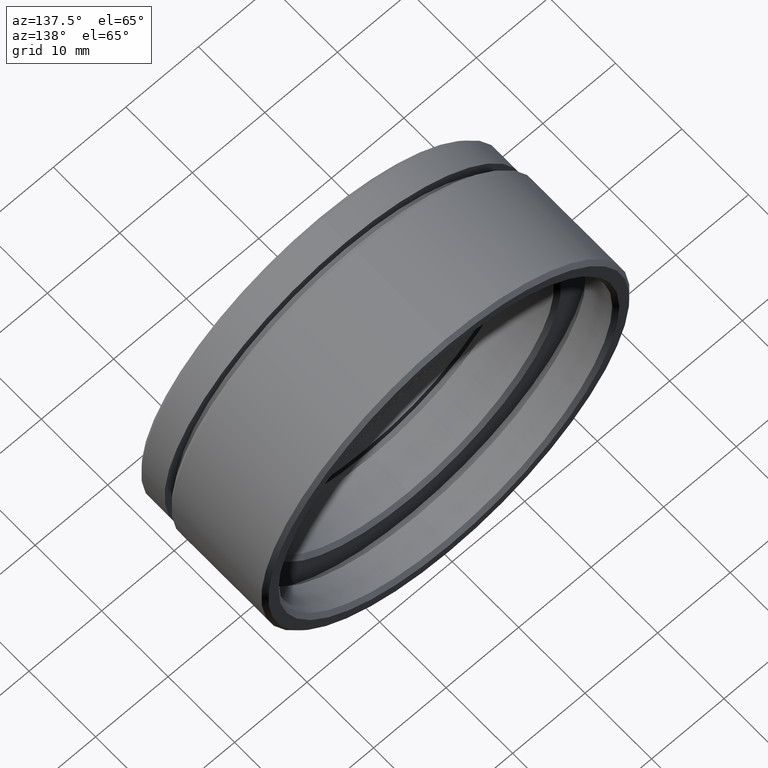
[diagram: clean part render]
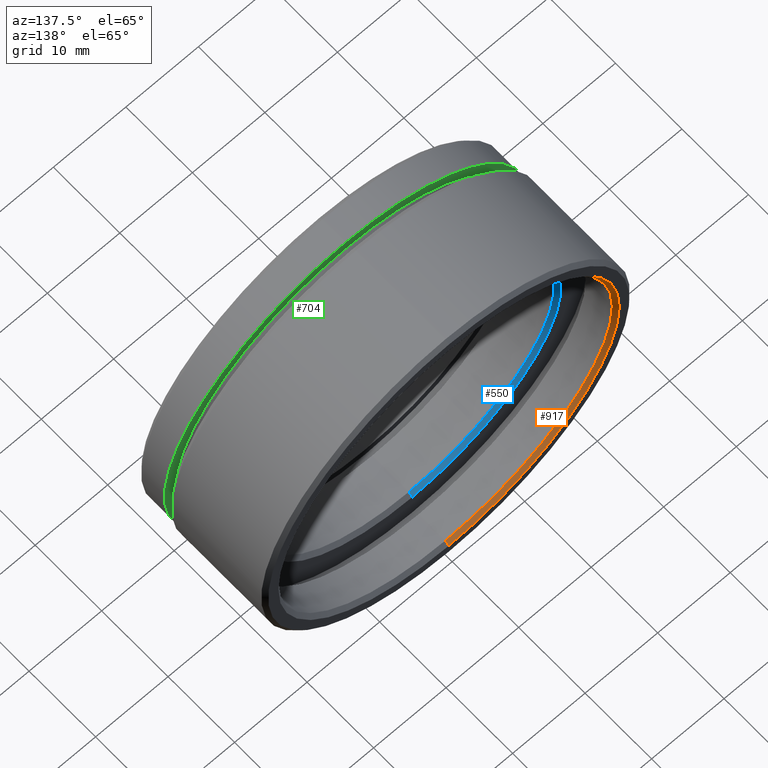
[diagram: same view with three faces highlighted in distinct colors, each labeled with its STEP entity id]
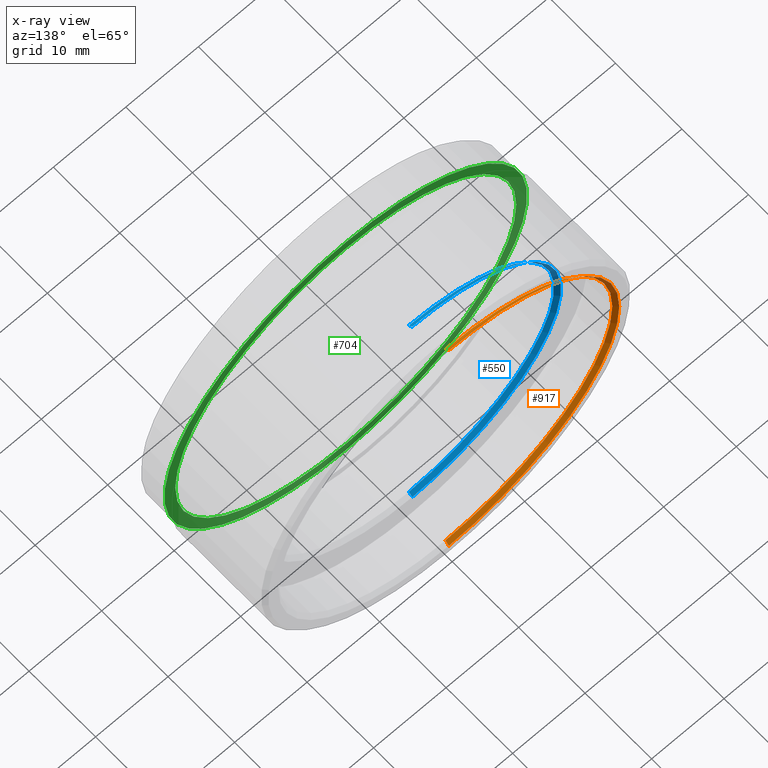
[diagram: x-ray of the same camera — body ghosted, the three highlighted faces saturated]
A machine part, auxiliary view with three faces highlighted in distinct colors.
The next image is the same camera in x-ray (body ghosted, the three faces saturated) — at least one of them is partly hidden behind the body in this view.
Their STEP definitions:

[orange] entity #917 — the highlighted conical surface has half-angle 45 deg.
#7 = CARTESIAN_POINT ( 'NONE',  ( 0.0000000000000000000, 19.00000000000000000, -23.00000000000000000 ) ) ;
#34 = DIRECTION ( 'NONE',  ( 0.0000000000000000000, 0.0000000000000000000, 1.000000000000000000 ) ) ;
#54 = DIRECTION ( 'NONE',  ( -0.0000000000000000000, -1.000000000000000000, -0.0000000000000000000 ) ) ;
#67 = CIRCLE ( 'NONE', #974, 23.50000000000000000 ) ;
#91 = FACE_OUTER_BOUND ( 'NONE', #313, .T. ) ;
#125 = DIRECTION ( 'NONE',  ( -0.0000000000000000000, 1.000000000000000000, -0.0000000000000000000 ) ) ;
#146 = EDGE_CURVE ( 'NONE', #596, #482, #1043, .T. ) ;
#155 = ORIENTED_EDGE ( 'NONE', *, *, #451, .T. ) ;
#184 = CIRCLE ( 'NONE', #783, 23.00000000000000000 ) ;
#284 = CARTESIAN_POINT ( 'NONE',  ( 0.0000000000000000000, 19.50000000000000000, 0.0000000000000000000 ) ) ;
#302 = VERTEX_POINT ( 'NONE', #7 ) ;
#313 = EDGE_LOOP ( 'NONE', ( #583, #155, #941, #1036 ) ) ;
#447 = CONICAL_SURFACE ( 'NONE', #1110, 23.50000000000000000, 0.7853981633974482800 ) ;
#451 = EDGE_CURVE ( 'NONE', #302, #716, #629, .T. ) ;
#482 = VERTEX_POINT ( 'NONE', #873 ) ;
#485 = DIRECTION ( 'NONE',  ( 8.659560562354932900E-017, 0.7071067811865474600, -0.7071067811865474600 ) ) ;
#551 = CARTESIAN_POINT ( 'NONE',  ( 0.0000000000000000000, 19.50000000000000000, 23.50000000000000000 ) ) ;
#557 = VECTOR ( 'NONE', #485, 1000.000000000000100 ) ;
#583 = ORIENTED_EDGE ( 'NONE', *, *, #709, .F. ) ;
#594 = CARTESIAN_POINT ( 'NONE',  ( 2.877919977996280300E-015, 19.50000000000000000, -23.50000000000000000 ) ) ;
#596 = VERTEX_POINT ( 'NONE', #812 ) ;
#624 = DIRECTION ( 'NONE',  ( 0.0000000000000000000, 0.7071067811865474600, 0.7071067811865474600 ) ) ;
#629 = LINE ( 'NONE', #594, #557 ) ;
#631 = DIRECTION ( 'NONE',  ( -0.0000000000000000000, 1.000000000000000000, -0.0000000000000000000 ) ) ;
#645 = DIRECTION ( 'NONE',  ( 0.0000000000000000000, 0.0000000000000000000, 1.000000000000000000 ) ) ;
#709 = EDGE_CURVE ( 'NONE', #302, #596, #184, .T. ) ;
#716 = VERTEX_POINT ( 'NONE', #936 ) ;
#743 = EDGE_CURVE ( 'NONE', #482, #716, #67, .T. ) ;
#783 = AXIS2_PLACEMENT_3D ( 'NONE', #912, #631, #34 ) ;
#788 = DIRECTION ( 'NONE',  ( 0.0000000000000000000, 0.0000000000000000000, 1.000000000000000000 ) ) ;
#804 = CARTESIAN_POINT ( 'NONE',  ( 0.0000000000000000000, 19.50000000000000000, 0.0000000000000000000 ) ) ;
#812 = CARTESIAN_POINT ( 'NONE',  ( 2.816687638038912400E-015, 19.00000000000000000, 23.00000000000000000 ) ) ;
#821 = VECTOR ( 'NONE', #624, 1000.000000000000100 ) ;
#873 = CARTESIAN_POINT ( 'NONE',  ( 0.0000000000000000000, 19.50000000000000000, 23.50000000000000000 ) ) ;
#912 = CARTESIAN_POINT ( 'NONE',  ( 0.0000000000000000000, 19.00000000000000000, 0.0000000000000000000 ) ) ;
#917 = ADVANCED_FACE ( 'NONE', ( #91 ), #447, .F. ) ;
#936 = CARTESIAN_POINT ( 'NONE',  ( 2.877919977996280300E-015, 19.50000000000000000, -23.50000000000000000 ) ) ;
#941 = ORIENTED_EDGE ( 'NONE', *, *, #743, .F. ) ;
#974 = AXIS2_PLACEMENT_3D ( 'NONE', #284, #54, #788 ) ;
#1036 = ORIENTED_EDGE ( 'NONE', *, *, #146, .F. ) ;
#1043 = LINE ( 'NONE', #551, #821 ) ;
#1110 = AXIS2_PLACEMENT_3D ( 'NONE', #804, #125, #645 ) ;

[blue] entity #550 — the highlighted conical surface has half-angle 45 deg.
#16 = LINE ( 'NONE', #1097, #587 ) ;
#175 = ORIENTED_EDGE ( 'NONE', *, *, #263, .F. ) ;
#192 = DIRECTION ( 'NONE',  ( 0.0000000000000000000, 0.7071067811865524600, 0.7071067811865426900 ) ) ;
#212 = CONICAL_SURFACE ( 'NONE', #893, 20.50000000000000400, 0.7853981633974415100 ) ;
#232 = CARTESIAN_POINT ( 'NONE',  ( 0.0000000000000000000, 14.00000000000000000, 20.50000000000000400 ) ) ;
#263 = EDGE_CURVE ( 'NONE', #374, #368, #774, .T. ) ;
#264 = CARTESIAN_POINT ( 'NONE',  ( 0.0000000000000000000, 13.49999999999998900, 0.0000000000000000000 ) ) ;
#299 = AXIS2_PLACEMENT_3D ( 'NONE', #264, #691, #855 ) ;
#341 = CARTESIAN_POINT ( 'NONE',  ( 0.0000000000000000000, 14.00000000000000000, 20.50000000000000400 ) ) ;
#366 = CIRCLE ( 'NONE', #299, 20.00000000000000000 ) ;
#368 = VERTEX_POINT ( 'NONE', #232 ) ;
#374 = VERTEX_POINT ( 'NONE', #513 ) ;
#392 = EDGE_LOOP ( 'NONE', ( #725, #586, #933, #175 ) ) ;
#401 = CARTESIAN_POINT ( 'NONE',  ( 2.510525938252074500E-015, 14.00000000000000000, -20.50000000000000400 ) ) ;
#418 = CARTESIAN_POINT ( 'NONE',  ( 0.0000000000000000000, 14.00000000000000000, 0.0000000000000000000 ) ) ;
#429 = FACE_OUTER_BOUND ( 'NONE', #392, .T. ) ;
#458 = VERTEX_POINT ( 'NONE', #766 ) ;
#465 = DIRECTION ( 'NONE',  ( -0.0000000000000000000, 1.000000000000000000, -0.0000000000000000000 ) ) ;
#480 = AXIS2_PLACEMENT_3D ( 'NONE', #582, #509, #833 ) ;
#497 = EDGE_CURVE ( 'NONE', #458, #859, #16, .T. ) ;
#509 = DIRECTION ( 'NONE',  ( -0.0000000000000000000, -1.000000000000000000, -0.0000000000000000000 ) ) ;
#513 = CARTESIAN_POINT ( 'NONE',  ( 2.449293598294706500E-015, 13.49999999999998900, 20.00000000000000000 ) ) ;
#550 = ADVANCED_FACE ( 'NONE', ( #429 ), #212, .F. ) ;
#582 = CARTESIAN_POINT ( 'NONE',  ( 0.0000000000000000000, 14.00000000000000000, 0.0000000000000000000 ) ) ;
#586 = ORIENTED_EDGE ( 'NONE', *, *, #497, .T. ) ;
#587 = VECTOR ( 'NONE', #799, 1000.000000000000000 ) ;
#666 = EDGE_CURVE ( 'NONE', #458, #374, #366, .T. ) ;
#668 = CIRCLE ( 'NONE', #480, 20.50000000000000400 ) ;
#691 = DIRECTION ( 'NONE',  ( -0.0000000000000000000, 1.000000000000000000, -0.0000000000000000000 ) ) ;
#725 = ORIENTED_EDGE ( 'NONE', *, *, #666, .F. ) ;
#766 = CARTESIAN_POINT ( 'NONE',  ( 0.0000000000000000000, 13.49999999999998900, -20.00000000000000000 ) ) ;
#774 = LINE ( 'NONE', #341, #777 ) ;
#777 = VECTOR ( 'NONE', #192, 1000.000000000000000 ) ;
#799 = DIRECTION ( 'NONE',  ( 8.659560562354873700E-017, 0.7071067811865524600, -0.7071067811865426900 ) ) ;
#833 = DIRECTION ( 'NONE',  ( 0.0000000000000000000, 0.0000000000000000000, 1.000000000000000000 ) ) ;
#855 = DIRECTION ( 'NONE',  ( 0.0000000000000000000, 0.0000000000000000000, 1.000000000000000000 ) ) ;
#859 = VERTEX_POINT ( 'NONE', #401 ) ;
#893 = AXIS2_PLACEMENT_3D ( 'NONE', #418, #465, #901 ) ;
#901 = DIRECTION ( 'NONE',  ( 0.0000000000000000000, 0.0000000000000000000, 1.000000000000000000 ) ) ;
#933 = ORIENTED_EDGE ( 'NONE', *, *, #1098, .F. ) ;
#1097 = CARTESIAN_POINT ( 'NONE',  ( 2.510525938252074500E-015, 14.00000000000000000, -20.50000000000000400 ) ) ;
#1098 = EDGE_CURVE ( 'NONE', #368, #859, #668, .T. ) ;

[green] entity #704 — the highlighted planar face has unit normal (0, 1, 0).
#27 = CARTESIAN_POINT ( 'NONE',  ( 0.0000000000000000000, 4.000000000000000900, 0.0000000000000000000 ) ) ;
#152 = CIRCLE ( 'NONE', #1038, 25.00000000000000000 ) ;
#156 = FACE_BOUND ( 'NONE', #415, .T. ) ;
#164 = DIRECTION ( 'NONE',  ( -0.0000000000000000000, -1.000000000000000000, -0.0000000000000000000 ) ) ;
#189 = DIRECTION ( 'NONE',  ( -0.0000000000000000000, -1.000000000000000000, -0.0000000000000000000 ) ) ;
#195 = EDGE_CURVE ( 'NONE', #1019, #349, #808, .T. ) ;
#207 = CARTESIAN_POINT ( 'NONE',  ( 0.0000000000000000000, 4.000000000000000900, -25.00000000000000000 ) ) ;
#248 = ORIENTED_EDGE ( 'NONE', *, *, #787, .F. ) ;
#325 = CIRCLE ( 'NONE', #940, 25.00000000000000000 ) ;
#347 = CARTESIAN_POINT ( 'NONE',  ( 0.0000000000000000000, 4.000000000000000900, 0.0000000000000000000 ) ) ;
#349 = VERTEX_POINT ( 'NONE', #823 ) ;
#360 = DIRECTION ( 'NONE',  ( 0.0000000000000000000, 0.0000000000000000000, -1.000000000000000000 ) ) ;
#370 = VERTEX_POINT ( 'NONE', #499 ) ;
#415 = EDGE_LOOP ( 'NONE', ( #473, #780 ) ) ;
#424 = DIRECTION ( 'NONE',  ( 0.0000000000000000000, 0.0000000000000000000, -1.000000000000000000 ) ) ;
#428 = EDGE_CURVE ( 'NONE', #349, #1019, #701, .T. ) ;
#430 = VERTEX_POINT ( 'NONE', #207 ) ;
#464 = CARTESIAN_POINT ( 'NONE',  ( 0.0000000000000000000, 4.000000000000000000, 0.0000000000000000000 ) ) ;
#473 = ORIENTED_EDGE ( 'NONE', *, *, #195, .T. ) ;
#499 = CARTESIAN_POINT ( 'NONE',  ( 3.061616997868383000E-015, 4.000000000000000900, 25.00000000000000000 ) ) ;
#501 = EDGE_LOOP ( 'NONE', ( #762, #248 ) ) ;
#558 = DIRECTION ( 'NONE',  ( 0.0000000000000000000, 1.000000000000000000, 0.0000000000000000000 ) ) ;
#569 = DIRECTION ( 'NONE',  ( 0.0000000000000000000, 0.0000000000000000000, -1.000000000000000000 ) ) ;
#617 = DIRECTION ( 'NONE',  ( 0.0000000000000000000, 0.0000000000000000000, -1.000000000000000000 ) ) ;
#671 = PLANE ( 'NONE',  #935 ) ;
#687 = CARTESIAN_POINT ( 'NONE',  ( 0.0000000000000000000, 4.000000000000000000, -23.49999999999999600 ) ) ;
#701 = CIRCLE ( 'NONE', #702, 23.49999999999999600 ) ;
#702 = AXIS2_PLACEMENT_3D ( 'NONE', #1093, #994, #424 ) ;
#704 = ADVANCED_FACE ( 'NONE', ( #156, #860 ), #671, .T. ) ;
#742 = DIRECTION ( 'NONE',  ( -0.0000000000000000000, -1.000000000000000000, -0.0000000000000000000 ) ) ;
#762 = ORIENTED_EDGE ( 'NONE', *, *, #801, .F. ) ;
#780 = ORIENTED_EDGE ( 'NONE', *, *, #428, .T. ) ;
#787 = EDGE_CURVE ( 'NONE', #370, #430, #325, .T. ) ;
#801 = EDGE_CURVE ( 'NONE', #430, #370, #152, .T. ) ;
#808 = CIRCLE ( 'NONE', #849, 23.49999999999999600 ) ;
#823 = CARTESIAN_POINT ( 'NONE',  ( 2.877919977996279900E-015, 4.000000000000000000, 23.49999999999999600 ) ) ;
#836 = DIRECTION ( 'NONE',  ( 0.0000000000000000000, -0.0000000000000000000, 1.000000000000000000 ) ) ;
#849 = AXIS2_PLACEMENT_3D ( 'NONE', #464, #164, #360 ) ;
#860 = FACE_OUTER_BOUND ( 'NONE', #501, .T. ) ;
#935 = AXIS2_PLACEMENT_3D ( 'NONE', #998, #558, #836 ) ;
#940 = AXIS2_PLACEMENT_3D ( 'NONE', #347, #742, #617 ) ;
#994 = DIRECTION ( 'NONE',  ( -0.0000000000000000000, -1.000000000000000000, -0.0000000000000000000 ) ) ;
#998 = CARTESIAN_POINT ( 'NONE',  ( 25.00000000000000000, 4.000000000000000000, 0.0000000000000000000 ) ) ;
#1019 = VERTEX_POINT ( 'NONE', #687 ) ;
#1038 = AXIS2_PLACEMENT_3D ( 'NONE', #27, #189, #569 ) ;
#1093 = CARTESIAN_POINT ( 'NONE',  ( 0.0000000000000000000, 4.000000000000000000, 0.0000000000000000000 ) ) ;